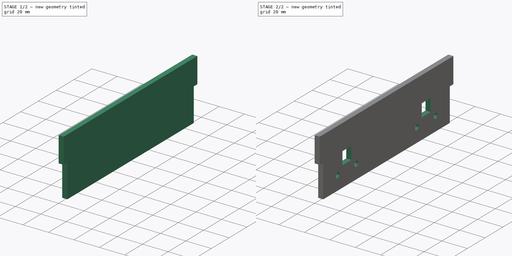
[diagram: build sequence overview — one tinted view per stage of 2, left to right]
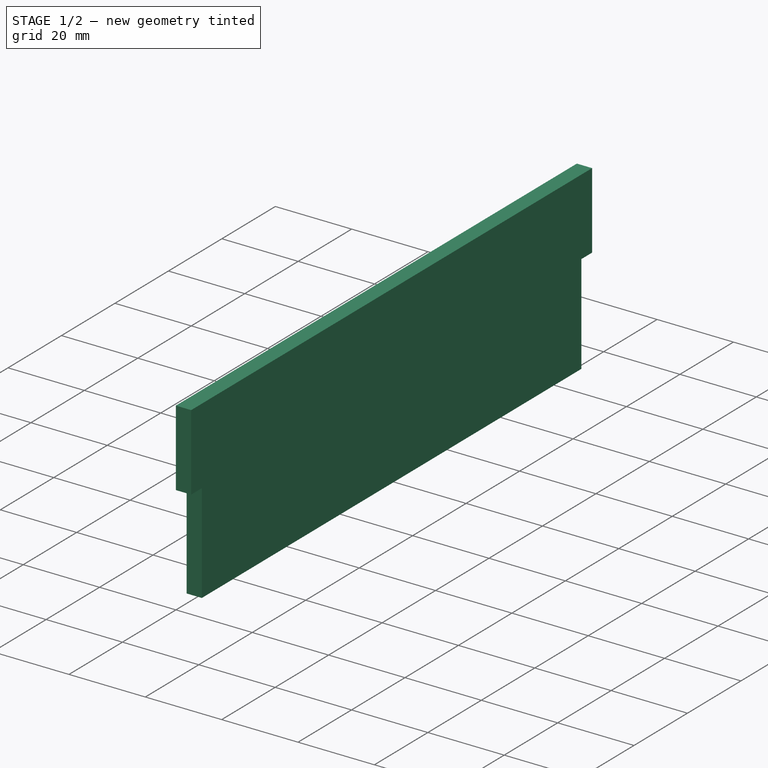
[diagram: stage 1 of 2 — iso view after this stage's code; geometry added in this stage tinted green]
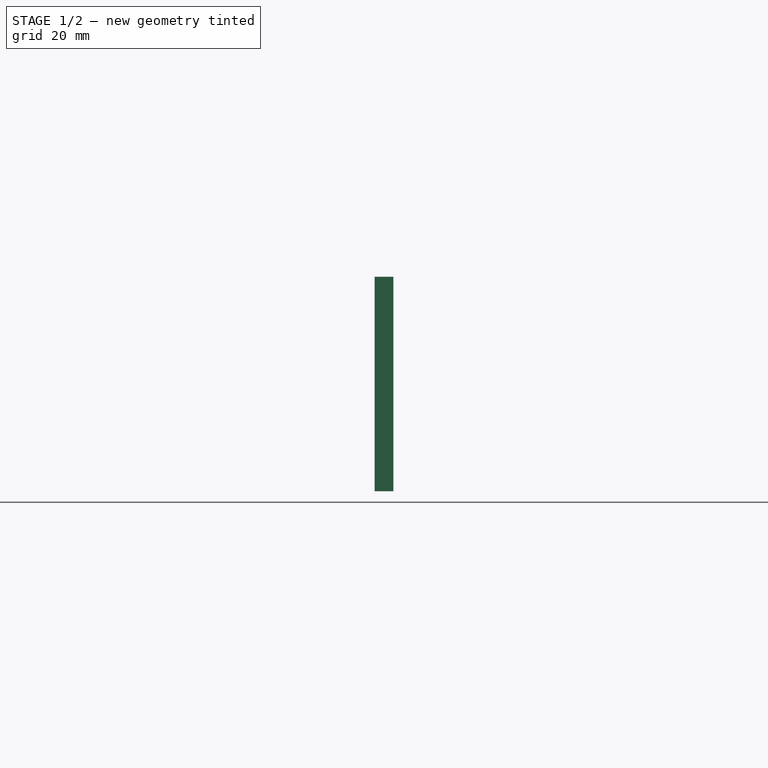
[diagram: stage 1 of 2 — front view after this stage's code; geometry added in this stage tinted green]
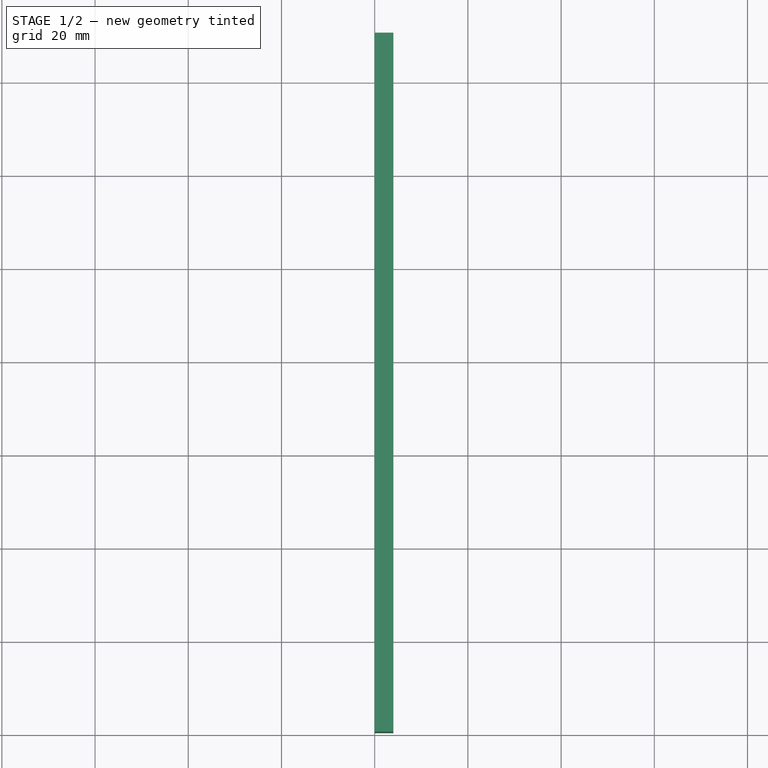
[diagram: stage 1 of 2 — top view after this stage's code; geometry added in this stage tinted green]
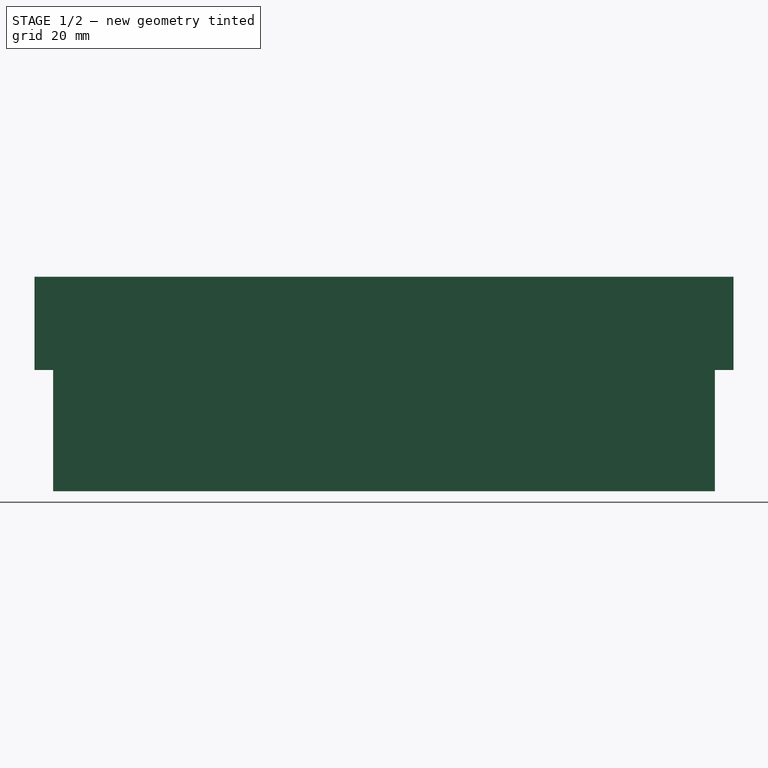
[diagram: stage 1 of 2 — right view after this stage's code; geometry added in this stage tinted green]
FCSTD DOCUMENT  (FreeCAD 1.0R39319 (Git))
Label: shear_strut
License: All rights reserved
LicenseURL: https://en.wikipedia.org/wiki/All_rights_reserved
objects: Sketcher::SketchObject×3, PartDesign::Pocket×2, PartDesign::Pad×1, PartDesign::Body×1
note: 16 computed .brp shape members not serialized (recipe doc carries the construction recipe); baked Part::Feature solids carry a one-line shape summary decoded from their .brp

FEATURE [Sketcher::SketchObject] Sketch
  ArcFitTolerance = 1e-06
  AttachmentSupport = -> [YZ_Plane]
  FullyConstrained = true
  MakeInternals = false
  MapMode = 5
  Placement = pos=(0,0,0) rot=(0.57735,0.57735,0.57735;2.0944rad)
  sketch-geometry (4):
    g0: LineSegment StartX=0 StartY=46 StartZ=0 EndX=0 EndY=0 EndZ=0
    g1: LineSegment StartX=0 StartY=0 StartZ=0 EndX=150 EndY=0 EndZ=0
    g2: LineSegment StartX=150 StartY=0 StartZ=0 EndX=150 EndY=46 EndZ=0
    g3: LineSegment StartX=150 StartY=46 StartZ=0 EndX=0 EndY=46 EndZ=0
  constraints (12):
    c: Coincident(g0,g1)
    c: Coincident(g1,g2)
    c: Coincident(g2,g3)
    c: Coincident(g3,g0)
    c: Vertical(g0)
    c: Vertical(g2)
    c: Horizontal(g1)
    c: Horizontal(g3)
    c: PointOnObject(g0,g-2)
    c: PointOnObject(g1,g-1)
    c: DistanceY(g0,g0) = 46
    c: DistanceX(g3,g3) = 150
FEATURE [PartDesign::Pad] Pad
  Direction = (1,0,0)
  Length = 4
  Length2 = 10
  Placement = pos=(0,0,0) rot=(1,1,1;2.0944rad)
  Profile = -> Sketch
  ReferenceAxis = -> Sketch [N_Axis]
  Refine = true
  Suppressed = false
  Type = 0
FEATURE [Sketcher::SketchObject] Sketch001
  ArcFitTolerance = 1e-06
  AttachmentSupport = -> [Pad]
  ExternalGeometry = -> [Pad]
  FullyConstrained = true
  MakeInternals = false
  MapMode = 5
  Placement = pos=(4,-9e-16,4e-16) rot=(0.57735,0.57735,0.57735;2.0944rad)
  sketch-geometry (9):
    g0: LineSegment StartX=0 StartY=0 StartZ=0 EndX=4 EndY=0 EndZ=0
    g1: LineSegment StartX=4 StartY=0 StartZ=0 EndX=4 EndY=26 EndZ=0
    g2: LineSegment StartX=4 StartY=26 StartZ=0 EndX=0 EndY=26 EndZ=0
    g3: LineSegment StartX=0 StartY=26 StartZ=0 EndX=0 EndY=0 EndZ=0
    g4: LineSegment StartX=150 StartY=0 StartZ=0 EndX=150 EndY=26 EndZ=0
    g5: LineSegment StartX=150 StartY=26 StartZ=0 EndX=146 EndY=26 EndZ=0
    g6: LineSegment StartX=146 StartY=26 StartZ=0 EndX=146 EndY=0 EndZ=0
    g7: LineSegment StartX=146 StartY=0 StartZ=0 EndX=150 EndY=0 EndZ=0
    g8: LineSegment [constr] StartX=4 StartY=26 StartZ=0 EndX=146 EndY=26 EndZ=0
  constraints (24):
    c: Coincident(g0,g1)
    c: Coincident(g1,g2)
    c: Coincident(g2,g3)
    c: Coincident(g3,g0)
    c: Horizontal(g0)
    c: Horizontal(g2)
    c: Vertical(g1)
    c: Vertical(g3)
    c: Coincident(g0,g-1)
    c: Coincident(g4,g5)
    c: Coincident(g5,g6)
    c: Coincident(g6,g7)
    c: Coincident(g7,g4)
    c: Vertical(g4)
    c: Vertical(g6)
    c: Horizontal(g5)
    c: Horizontal(g7)
    c: Coincident(g4,g-3)
    c: Coincident(g8,g1)
    c: Coincident(g8,g5)
    c: Horizontal(g8)
    c: DistanceX(g2,g2) = 4
    c: DistanceX(g5,g5) = 4
    c: DistanceY(g2,g-4) = 20
FEATURE [PartDesign::Pocket] Pocket
  BaseFeature = -> Pad
  Direction = (-1,0,0)
  Length = 5
  Length2 = 5
  Placement = pos=(0,0,0) rot=(1,1,1;2.0944rad)
  Profile = -> Sketch001
  ReferenceAxis = -> Sketch001 [N_Axis]
  Refine = true
  Suppressed = false
  Type = 0
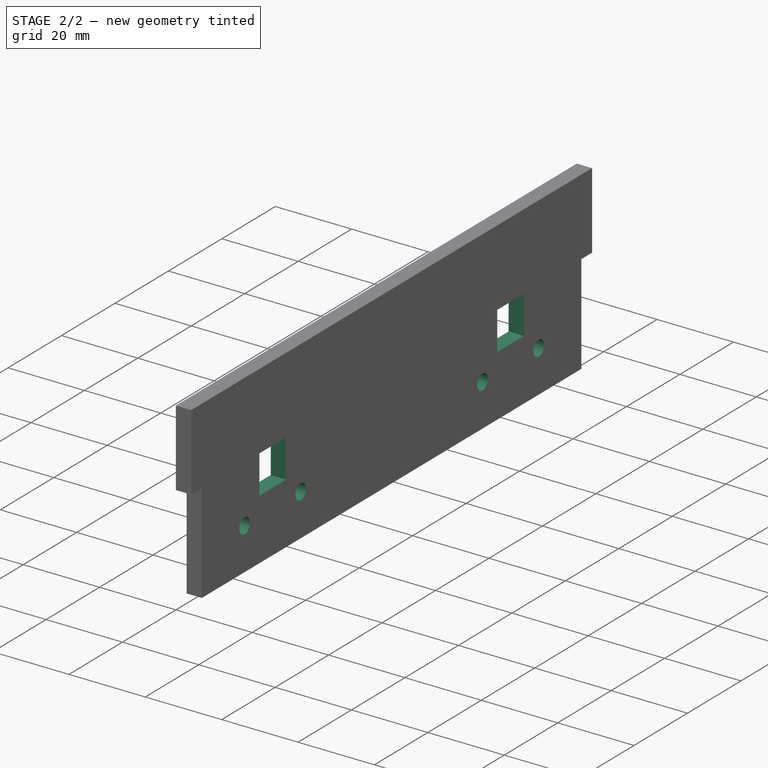
[diagram: stage 2 of 2 — iso view after this stage's code; geometry added in this stage tinted green]
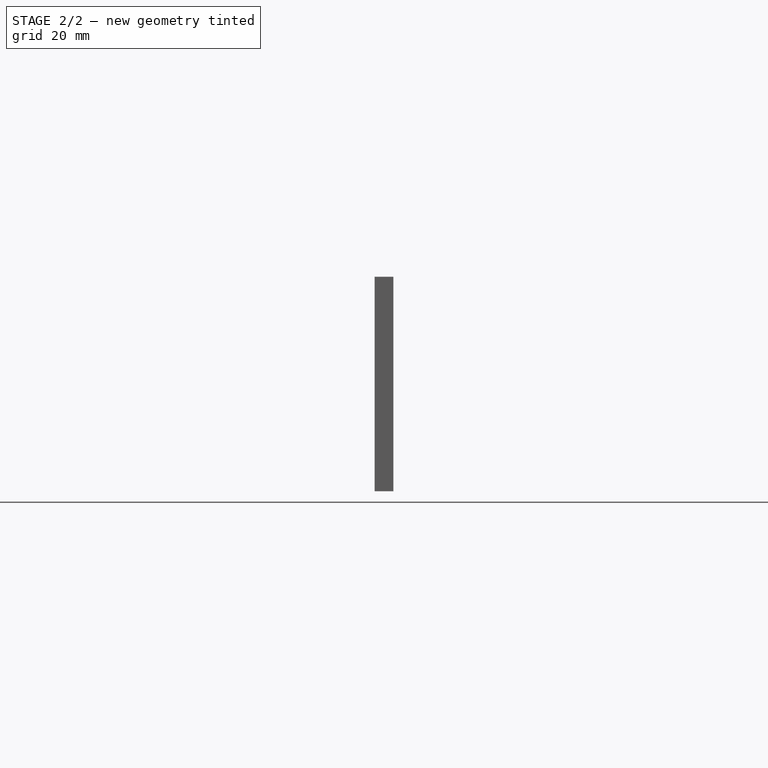
[diagram: stage 2 of 2 — front view after this stage's code; geometry added in this stage tinted green]
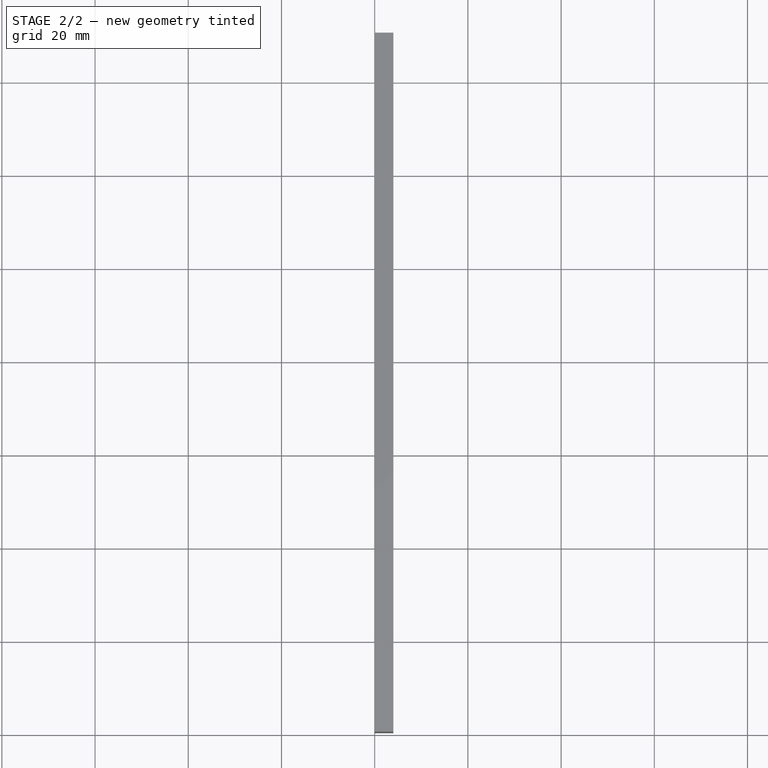
[diagram: stage 2 of 2 — top view after this stage's code; geometry added in this stage tinted green]
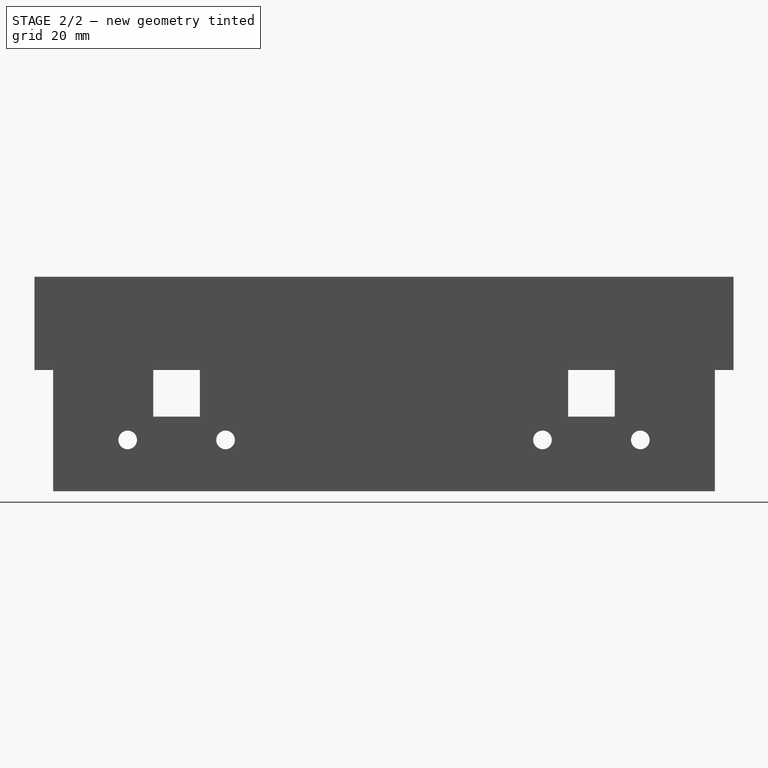
[diagram: stage 2 of 2 — right view after this stage's code; geometry added in this stage tinted green]
FEATURE [Sketcher::SketchObject] Sketch002
  ArcFitTolerance = 1e-06
  AttachmentSupport = -> [Pocket]
  ExternalGeometry = -> [Pocket]
  FullyConstrained = true
  MakeInternals = false
  MapMode = 5
  Placement = pos=(4,-1.8e-15,9e-16) rot=(0.57735,0.57735,0.57735;2.0944rad)
  sketch-geometry (23):
    g0: LineSegment [constr] StartX=20 StartY=11 StartZ=0 EndX=41 EndY=11 EndZ=0
    g1: Circle CenterX=20 CenterY=11 CenterZ=0 NormalX=0 NormalY=0 NormalZ=1 AngleXU=0 Radius=2
    g2: Circle CenterX=41 CenterY=11 CenterZ=0 NormalX=0 NormalY=0 NormalZ=1 AngleXU=0 Radius=2
    g3: LineSegment StartX=25.5 StartY=26 StartZ=0 EndX=25.5 EndY=16 EndZ=0
    g4: LineSegment StartX=25.5 StartY=16 StartZ=0 EndX=35.5 EndY=16 EndZ=0
    g5: LineSegment StartX=35.5 StartY=16 StartZ=0 EndX=35.5 EndY=26 EndZ=0
    g6: LineSegment StartX=35.5 StartY=26 StartZ=0 EndX=25.5 EndY=26 EndZ=0
    g7: LineSegment [constr] StartX=20 StartY=11 StartZ=0 EndX=25.5 EndY=16 EndZ=0
    g8: LineSegment [constr] StartX=41 StartY=11 StartZ=0 EndX=35.5 EndY=16 EndZ=0
    g9: LineSegment [constr] StartX=0 StartY=0 StartZ=0 EndX=20 EndY=0 EndZ=0
    g10: LineSegment [constr] StartX=20 StartY=0 StartZ=0 EndX=20 EndY=11 EndZ=0
    g11: LineSegment [constr] StartX=20 StartY=11 StartZ=0 EndX=0 EndY=11 EndZ=0
    g12: LineSegment [constr] StartX=0 StartY=11 StartZ=0 EndX=0 EndY=0 EndZ=0
    g13: LineSegment [constr] StartX=109 StartY=11 StartZ=0 EndX=130 EndY=11 EndZ=0
    g14: Circle CenterX=109 CenterY=11 CenterZ=0 NormalX=0 NormalY=0 NormalZ=1 AngleXU=0 Radius=2
    g15: Circle CenterX=130 CenterY=11 CenterZ=0 NormalX=0 NormalY=0 NormalZ=1 AngleXU=0 Radius=2
    g16: LineSegment StartX=114.5 StartY=26 StartZ=0 EndX=114.5 EndY=16 EndZ=0
    g17: LineSegment StartX=114.5 StartY=16 StartZ=0 EndX=124.5 EndY=16 EndZ=0
    g18: LineSegment StartX=124.5 StartY=16 StartZ=0 EndX=124.5 EndY=26 EndZ=0
    g19: LineSegment StartX=124.5 StartY=26 StartZ=0 EndX=114.5 EndY=26 EndZ=0
    g20: LineSegment [constr] StartX=109 StartY=11 StartZ=0 EndX=114.5 EndY=16 EndZ=0
    g21: LineSegment [constr] StartX=130 StartY=11 StartZ=0 EndX=124.5 EndY=16 EndZ=0
    g22: LineSegment [constr] StartX=109 StartY=11 StartZ=0 EndX=41 EndY=11 EndZ=0
  constraints (60):
    c: Horizontal(g0)
    c: Coincident(g1,g0)
    c: Coincident(g2,g0)
    c: Equal(g2,g1)
    c: Diameter(g2) = 4
    c: DistanceX(g0,g0) = 21
    c: Coincident(g3,g4)
    c: Coincident(g4,g5)
    c: Coincident(g5,g6)
    c: Coincident(g6,g3)
    c: Vertical(g3)
    c: Vertical(g5)
    c: Horizontal(g4)
    c: Horizontal(g6)
    c: DistanceX(g6,g6) = 10
    c: Coincident(g7,g0)
    c: Coincident(g7,g3)
    c: Coincident(g8,g0)
    c: Coincident(g8,g4)
    c: Equal(g7,g8)
    c: Equal(g5,g6)
    c: DistanceY(g0,g3) = 5
    c: Coincident(g9,g10)
    c: Coincident(g10,g11)
    c: Coincident(g11,g12)
    c: Coincident(g12,g9)
    c: Horizontal(g9)
    c: Horizontal(g11)
    c: Vertical(g10)
    c: Vertical(g12)
    c: Coincident(g9,g-1)
    c: Coincident(g10,g0)
    c: DistanceX(g9,g9) = 20
    c: DistanceY(g12,g12) = 11
    c: Horizontal(g13)
    c: Coincident(g14,g13)
    c: Coincident(g15,g13)
    c: Equal(g15,g14)
    c: Diameter(g15) = 4
    c: DistanceX(g13,g13) = 21
    c: Coincident(g16,g17)
    c: Coincident(g17,g18)
    c: Coincident(g18,g19)
    c: Coincident(g19,g16)
    c: Vertical(g16)
    c: Vertical(g18)
    c: Horizontal(g17)
    c: Horizontal(g19)
    c: DistanceX(g19,g19) = 10
    c: Coincident(g20,g13)
    c: Coincident(g20,g16)
    c: Coincident(g21,g13)
    c: Coincident(g21,g17)
    c: Equal(g20,g21)
    c: Equal(g18,g19)
    c: DistanceY(g13,g16) = 5
    c: Coincident(g22,g13)
    c: Coincident(g22,g0)
    c: Horizontal(g22)
    c: DistanceX(g13,g-3) = 20
FEATURE [PartDesign::Pocket] Pocket001
  BaseFeature = -> Pocket
  Direction = (-1,0,0)
  Length = 5
  Length2 = 5
  Placement = pos=(0,0,0) rot=(1,1,1;2.0944rad)
  Profile = -> Sketch002
  ReferenceAxis = -> Sketch002 [N_Axis]
  Refine = true
  Suppressed = false
  Type = 0
FEATURE [PartDesign::Body] Body
  AllowCompound = false
  Group = -> [Sketch,Pad,Sketch001,Pocket,Sketch002,Pocket001]
  Origin = -> Origin
  Tip = -> Pocket001
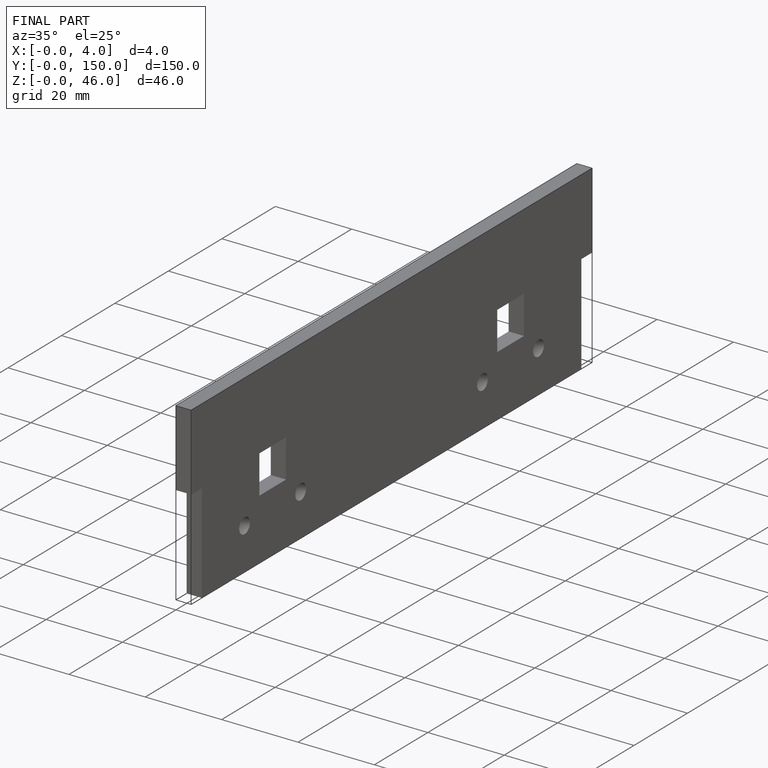
[diagram: finished part — iso view with bounding-box wireframe]
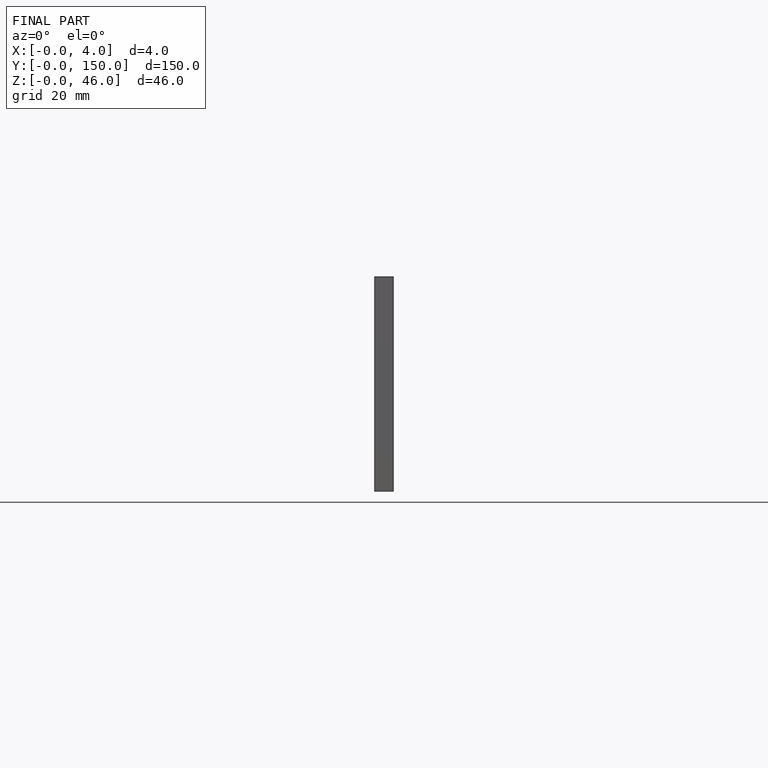
[diagram: finished part — front view with bounding-box wireframe]
